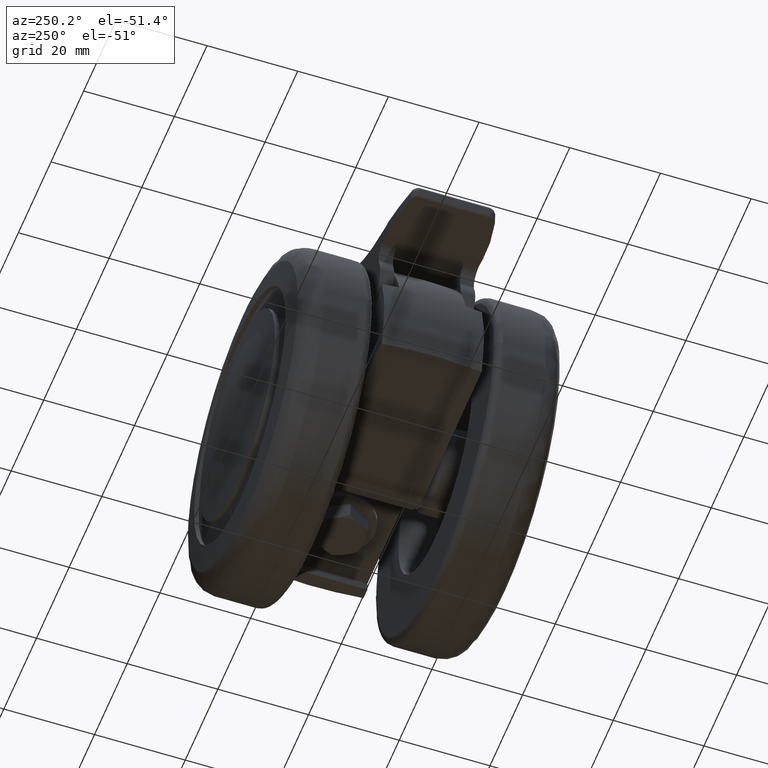
[diagram: clean part render]
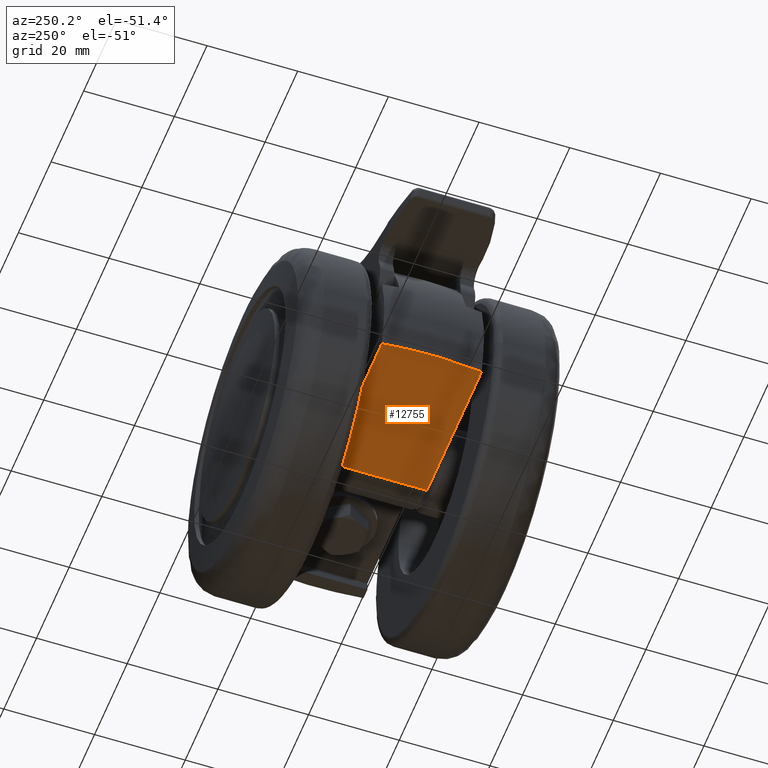
[diagram: same view with one face highlighted and labeled with its STEP entity id]
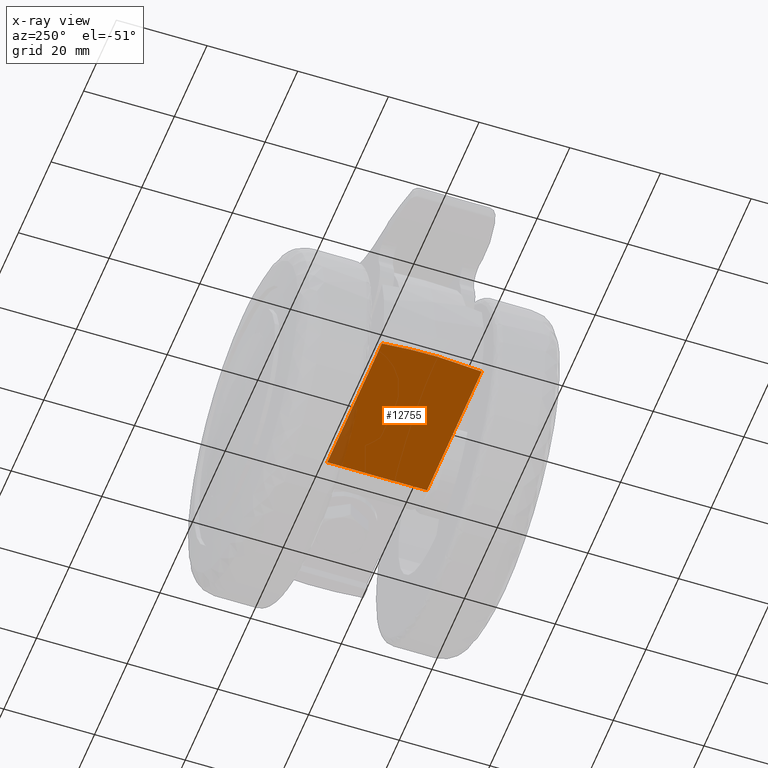
[diagram: x-ray of the same camera — body ghosted, the highlighted face saturated]
A machine part, auxiliary view. The second image highlights one B-rep face of the part: STEP entity #12755.
The next image is the same camera in x-ray: the body ghosted, the highlighted face saturated — about 5% of this face is hidden behind the body in this view.
In plain terms, the highlighted face is a freeform B-spline surface patch.
Its self-contained STEP definition (entity closure, byte-faithful):
#11062=CARTESIAN_POINT('',(-2.0,-11.000000373584919,-10.0));
#11063=VERTEX_POINT('',#11062);
#11079=CARTESIAN_POINT('',(-2.0,11.0,-10.0));
#11080=VERTEX_POINT('',#11079);
#11081=CARTESIAN_POINT('',(-2.0,11.0,-10.0));
#11082=CARTESIAN_POINT('',(-2.0,-11.000000373584919,-10.0));
#11083=QUASI_UNIFORM_CURVE('',1,(#11081,#11082),.UNSPECIFIED.,.F.,.U.);
#11084=EDGE_CURVE('',#11080,#11063,#11083,.T.);
#12717=CARTESIAN_POINT('',(-0.294603133260486,-12.098900948370989,-10.0));
#12718=CARTESIAN_POINT('',(-37.847478521510340,-12.098900948370989,-10.0));
#12719=CARTESIAN_POINT('',(-0.294603133260486,12.098900594591800,-10.0));
#12720=CARTESIAN_POINT('',(-37.847478521510340,12.098900594591800,-10.0));
#12721=B_SPLINE_SURFACE_WITH_KNOTS('',1,1,((#12717,#12719),(#12718,#12720)),.UNSPECIFIED.,.F.,.F.,.U.,(2,2),(2,2),(0.0,37.552875388249852),(0.0,24.197801542962790),.UNSPECIFIED.);
#12722=CARTESIAN_POINT('',(-35.512042760157797,11.0,-10.0));
#12723=VERTEX_POINT('',#12722);
#12724=CARTESIAN_POINT('',(-2.0,11.0,-10.0));
#12725=CARTESIAN_POINT('',(-35.512042760157797,11.0,-10.0));
#12726=QUASI_UNIFORM_CURVE('',1,(#12724,#12725),.UNSPECIFIED.,.F.,.U.);
#12727=EDGE_CURVE('',#11080,#12723,#12726,.T.);
#12728=ORIENTED_EDGE('',*,*,#12727,.F.);
#12729=ORIENTED_EDGE('',*,*,#11084,.T.);
#12730=CARTESIAN_POINT('',(-35.512042381589552,-11.000000747169860,-10.0));
#12731=VERTEX_POINT('',#12730);
#12732=CARTESIAN_POINT('',(-35.512042381589552,-11.000000747169860,-10.0));
#12733=CARTESIAN_POINT('',(-2.0,-11.000000373584919,-10.0));
#12734=QUASI_UNIFORM_CURVE('',1,(#12732,#12733),.UNSPECIFIED.,.F.,.U.);
#12735=EDGE_CURVE('',#12731,#11063,#12734,.T.);
#12736=ORIENTED_EDGE('',*,*,#12735,.F.);
#12737=CARTESIAN_POINT('',(-35.512042381589552,-11.000000747169860,-10.0));
#12738=CARTESIAN_POINT('',(-35.721809822897541,-9.175551991606206,-10.0));
#12739=CARTESIAN_POINT('',(-35.879830344843597,-7.340971302271866,-10.0));
#12740=CARTESIAN_POINT('',(-36.011577916186887,-5.034866236017908,-9.999999999999998));
#12741=CARTESIAN_POINT('',(-36.034640040430347,-4.572894179389679,-10.0));
#12742=CARTESIAN_POINT('',(-36.074122184226177,-3.648098148528205,-10.0));
#12743=CARTESIAN_POINT('',(-36.123277710396152,-2.262157622572264,-9.999999999999998));
#12744=CARTESIAN_POINT('',(-36.142453123900317,-0.879949897555591,-10.0));
#12745=CARTESIAN_POINT('',(-36.141311207134592,1.879548341101789,-10.0));
#12746=CARTESIAN_POINT('',(-36.087929604692867,3.712662117098133,-10.0));
#12747=CARTESIAN_POINT('',(-35.877567200097630,7.365990611829057,-10.0));
#12748=CARTESIAN_POINT('',(-35.720584952435857,9.186205150584511,-10.0));
#12749=CARTESIAN_POINT('',(-35.512042760157797,11.0,-10.0));
#12750=B_SPLINE_CURVE_WITH_KNOTS('',3,(#12737,#12738,#12739,#12740,#12741,#12742,#12743,#12744,#12745,#12746,#12747,#12748,#12749),.UNSPECIFIED.,.F.,.U.,(4,2,2,1,2,2,4),(0.0,0.250000000000000,0.312500000000000,0.375000000000000,0.500000000000000,0.750000000000000,1.0),.UNSPECIFIED.);
#12751=EDGE_CURVE('',#12731,#12723,#12750,.T.);
#12752=ORIENTED_EDGE('',*,*,#12751,.T.);
#12753=EDGE_LOOP('',(#12728,#12729,#12736,#12752));
#12754=FACE_OUTER_BOUND('',#12753,.T.);
#12755=ADVANCED_FACE('',(#12754),#12721,.T.);